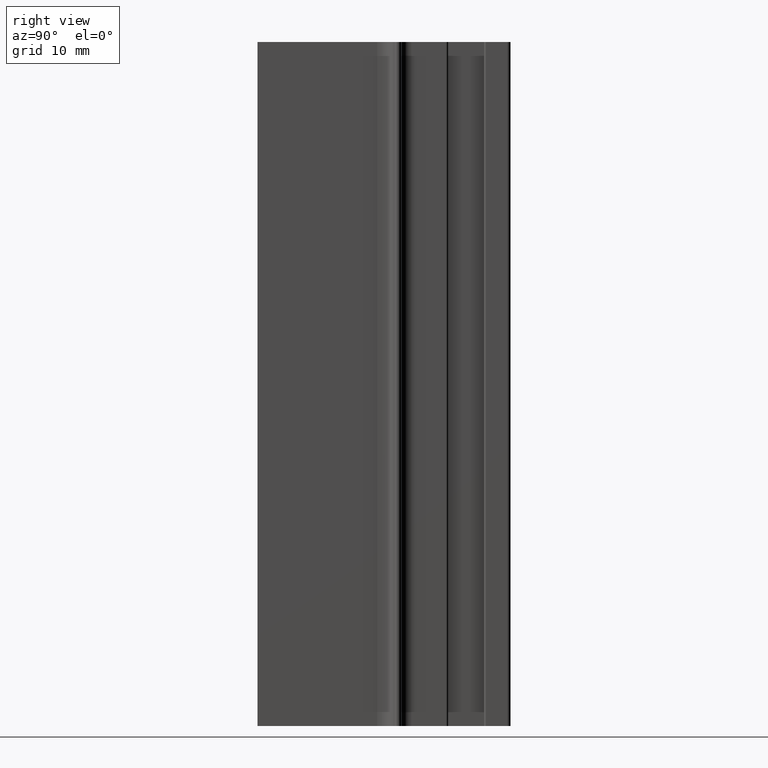
[diagram: clean part render]
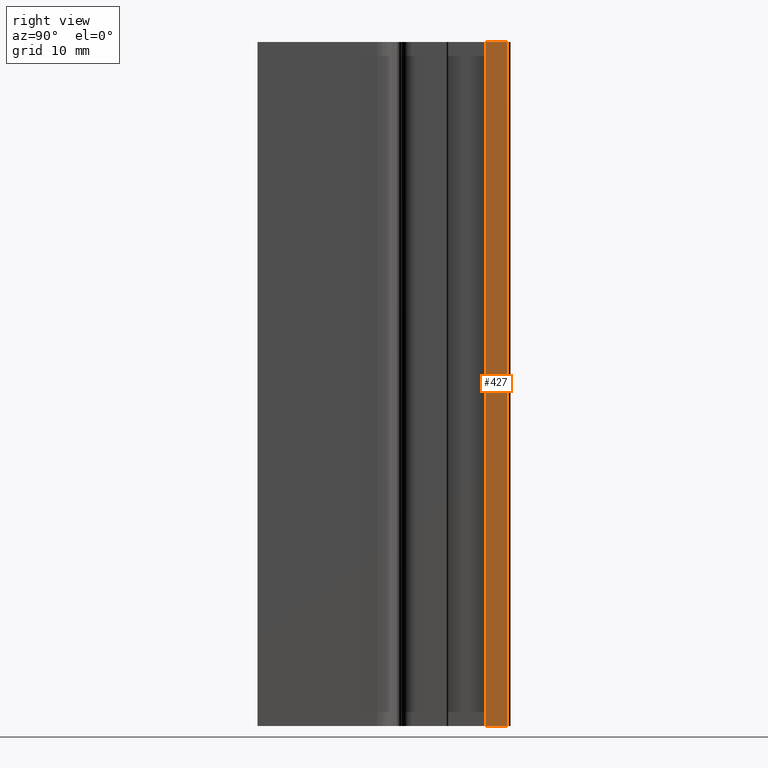
[diagram: same view with one face highlighted and labeled with its STEP entity id]
A machine part, right view. The second image highlights one B-rep face of the part: STEP entity #427.
In plain terms, the highlighted planar face has unit normal (1, 0, 0).
Its self-contained STEP definition (entity closure, byte-faithful):
#369=CARTESIAN_POINT('',(-1.500000000000000,33.429261840734853,0.0));
#370=VERTEX_POINT('',#369);
#378=CARTESIAN_POINT('',(-1.500000000000000,33.429261840734853,100.0));
#379=VERTEX_POINT('',#378);
#380=CARTESIAN_POINT('',(-1.500000000000000,33.429261840734853,0.0));
#381=DIRECTION('',(0.0,0.0,1.0));
#382=VECTOR('',#381,100.0);
#383=LINE('',#380,#382);
#384=EDGE_CURVE('',#370,#379,#383,.T.);
#397=CARTESIAN_POINT('',(-1.500000000000000,33.429261840734853,0.0));
#398=DIRECTION('',(1.0,0.0,0.0));
#399=DIRECTION('',(0.0,1.0,0.0));
#400=AXIS2_PLACEMENT_3D('',#397,#398,#399);
#401=PLANE('',#400);
#402=CARTESIAN_POINT('',(-1.500000000000000,36.500000499999032,0.0));
#403=VERTEX_POINT('',#402);
#404=CARTESIAN_POINT('',(-1.500000000000000,33.429261840734853,0.0));
#405=DIRECTION('',(0.0,1.0,0.0));
#406=VECTOR('',#405,3.070738659264180);
#407=LINE('',#404,#406);
#408=EDGE_CURVE('',#370,#403,#407,.T.);
#409=ORIENTED_EDGE('',*,*,#408,.T.);
#410=CARTESIAN_POINT('',(-1.500000000000000,36.500000499999032,100.0));
#411=VERTEX_POINT('',#410);
#412=CARTESIAN_POINT('',(-1.500000000000000,36.500000499999032,0.0));
#413=DIRECTION('',(0.0,0.0,1.0));
#414=VECTOR('',#413,100.0);
#415=LINE('',#412,#414);
#416=EDGE_CURVE('',#403,#411,#415,.T.);
#417=ORIENTED_EDGE('',*,*,#416,.T.);
#418=CARTESIAN_POINT('',(-1.500000000000000,33.429261840734853,100.0));
#419=DIRECTION('',(0.0,1.0,0.0));
#420=VECTOR('',#419,3.070738659264180);
#421=LINE('',#418,#420);
#422=EDGE_CURVE('',#379,#411,#421,.T.);
#423=ORIENTED_EDGE('',*,*,#422,.F.);
#424=ORIENTED_EDGE('',*,*,#384,.F.);
#425=EDGE_LOOP('',(#409,#417,#423,#424));
#426=FACE_OUTER_BOUND('',#425,.T.);
#427=ADVANCED_FACE('',(#426),#401,.T.);